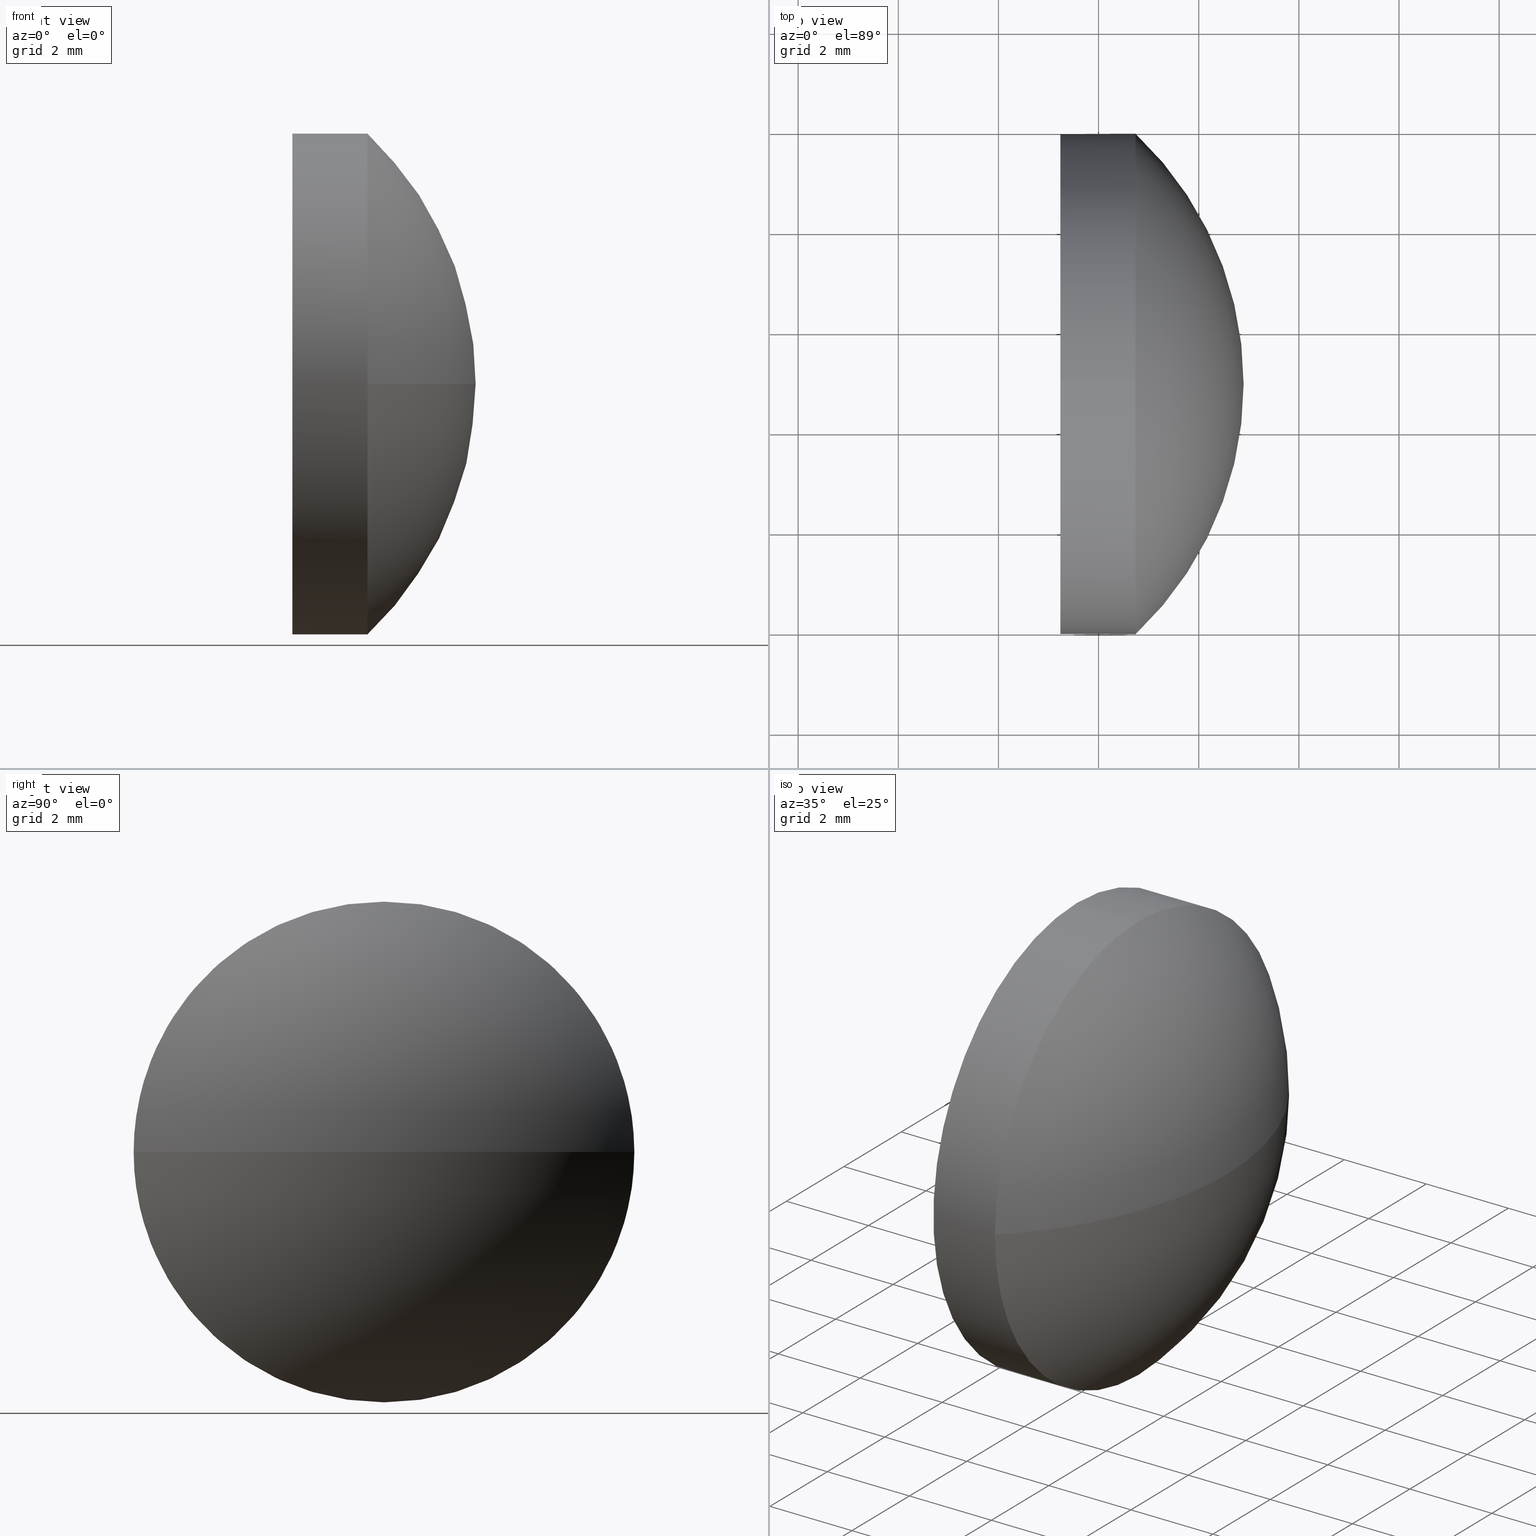
[diagram: canonical four-view strip — front | top / right | iso, engineering-drawing reading convention]
A machine part, canonical four-view strip (front | top / right | iso — engineering-drawing reading convention). The complete STEP part file that produces these views, byte-faithful:
ISO-10303-21;
HEADER;
FILE_DESCRIPTION (( 'STEP AP214' ),
    '1' );
FILE_NAME ('100357.STEP',
    '2019-06-03T06:52:42',
    ( '' ),
    ( '' ),
    'SwSTEP 2.0',
    'SolidWorks 2016',
    '' );
FILE_SCHEMA (( 'AUTOMOTIVE_DESIGN' ));
ENDSEC;

DATA;
#1 = SURFACE_STYLE_FILL_AREA ( #82 ) ;
#2 = ADVANCED_FACE ( 'NONE', ( #139 ), #18, .F. ) ;
#3 = FACE_OUTER_BOUND ( 'NONE', #119, .T. ) ;
#4 = AXIS2_PLACEMENT_3D ( 'NONE', #106, #11, #63 ) ;
#5 = ORIENTED_EDGE ( 'NONE', *, *, #120, .T. ) ;
#6 = CIRCLE ( 'NONE', #4, 5.000000000000004400 ) ;
#7 = PRODUCT_RELATED_PRODUCT_CATEGORY ( 'part', '', ( #161 ) ) ;
#8 = AXIS2_PLACEMENT_3D ( 'NONE', #182, #110, #14 ) ;
#9 = CARTESIAN_POINT ( 'NONE',  ( 444.0298561059135000, 96.92527297599600900, 0.0000000000000000000 ) ) ;
#10 = CARTESIAN_POINT ( 'NONE',  ( 446.0946634505061200, 96.92527297599599500, 5.000000000000004400 ) ) ;
#11 = DIRECTION ( 'NONE',  ( -1.000000000000000000, -0.0000000000000000000, -0.0000000000000000000 ) ) ;
#12 = ORIENTED_EDGE ( 'NONE', *, *, #101, .T. ) ;
#13 = SURFACE_STYLE_USAGE ( .BOTH. , #108 ) ;
#14 = DIRECTION ( 'NONE',  ( 1.000000000000000000, 0.0000000000000000000, 0.0000000000000000000 ) ) ;
#15 = ORIENTED_EDGE ( 'NONE', *, *, #166, .F. ) ;
#16 = ADVANCED_FACE ( 'NONE', ( #66 ), #155, .T. ) ;
#17 = ADVANCED_FACE ( 'NONE', ( #180 ), #186, .T. ) ;
#18 = PLANE ( 'NONE',  #137 ) ;
#19 = CARTESIAN_POINT ( 'NONE',  ( 447.2368931429505200, 96.92527297599599500, -5.000000000000004400 ) ) ;
#20 = APPLICATION_PROTOCOL_DEFINITION ( 'draft international standard', 'automotive_design', 1998, #65 ) ;
#21 = ORIENTED_EDGE ( 'NONE', *, *, #101, .F. ) ;
#22 = UNCERTAINTY_MEASURE_WITH_UNIT (LENGTH_MEASURE( 1.000000000000000100E-005 ), #168, 'distance_accuracy_value', 'NONE');
#23 = PRESENTATION_STYLE_ASSIGNMENT (( #13 ) ) ;
#24 = AXIS2_PLACEMENT_3D ( 'NONE', #157, #95, #112 ) ;
#25 = DIRECTION ( 'NONE',  ( 0.0000000000000000000, 0.0000000000000000000, 1.000000000000000000 ) ) ;
#26 = ORIENTED_EDGE ( 'NONE', *, *, #147, .T. ) ;
#27 = DIRECTION ( 'NONE',  ( 0.0000000000000000000, 0.0000000000000000000, 1.000000000000000000 ) ) ;
#28 = DIRECTION ( 'NONE',  ( -1.000000000000000000, -0.0000000000000000000, -0.0000000000000000000 ) ) ;
#29 = VERTEX_POINT ( 'NONE', #131 ) ;
#30 = FACE_OUTER_BOUND ( 'NONE', #51, .T. ) ;
#31 = DIRECTION ( 'NONE',  ( -1.000000000000000000, -0.0000000000000000000, -0.0000000000000000000 ) ) ;
#32 = PRODUCT_DEFINITION_SHAPE ( 'NONE', 'NONE',  #68 ) ;
#33 = AXIS2_PLACEMENT_3D ( 'NONE', #151, #47, #59 ) ;
#34 = COLOUR_RGB ( '',1.000000000000000000, 1.000000000000000000, 1.000000000000000000 ) ;
#35 =( NAMED_UNIT ( * ) SI_UNIT ( $, .STERADIAN. ) SOLID_ANGLE_UNIT ( ) );
#36 = MANIFOLD_SOLID_BREP ( '��ת1', #50 ) ;
#37 = ORIENTED_EDGE ( 'NONE', *, *, #128, .T. ) ;
#38 = APPLICATION_PROTOCOL_DEFINITION ( 'draft international standard', 'automotive_design', 1998, #136 ) ;
#39 = ORIENTED_EDGE ( 'NONE', *, *, #132, .F. ) ;
#40 = LINE ( 'NONE', #10, #169 ) ;
#41 = ORIENTED_EDGE ( 'NONE', *, *, #158, .T. ) ;
#42 = COLOUR_RGB ( '',1.000000000000000000, 1.000000000000000000, 1.000000000000000000 ) ;
#43 = DIRECTION ( 'NONE',  ( 1.000000000000000000, 0.0000000000000000000, 0.0000000000000000000 ) ) ;
#44 = VERTEX_POINT ( 'NONE', #90 ) ;
#45 = DIRECTION ( 'NONE',  ( 0.0000000000000000000, 0.0000000000000000000, -1.000000000000000000 ) ) ;
#46 =( NAMED_UNIT ( * ) PLANE_ANGLE_UNIT ( ) SI_UNIT ( $, .RADIAN. ) );
#47 = DIRECTION ( 'NONE',  ( -1.000000000000000000, -0.0000000000000000000, -0.0000000000000000000 ) ) ;
#48 = DIRECTION ( 'NONE',  ( 0.0000000000000000000, 0.0000000000000000000, 1.000000000000000000 ) ) ;
#49 =( LENGTH_UNIT ( ) NAMED_UNIT ( * ) SI_UNIT ( .MILLI., .METRE. ) );
#50 = CLOSED_SHELL ( 'NONE', ( #86, #17, #142, #16, #2 ) ) ;
#51 = EDGE_LOOP ( 'NONE', ( #92, #77, #148, #171 ) ) ;
#52 =( GEOMETRIC_REPRESENTATION_CONTEXT ( 3 ) GLOBAL_UNCERTAINTY_ASSIGNED_CONTEXT ( ( #88 ) ) GLOBAL_UNIT_ASSIGNED_CONTEXT ( ( #49, #173, #35 ) ) REPRESENTATION_CONTEXT ( 'NONE', 'WORKASPACE' ) );
#53 = STYLED_ITEM ( 'NONE', ( #23 ), #146 ) ;
#54 = ORIENTED_EDGE ( 'NONE', *, *, #166, .T. ) ;
#55 = CARTESIAN_POINT ( 'NONE',  ( 447.2368931429505200, 96.92527297599599500, 0.0000000000000000000 ) ) ;
#56 = VERTEX_POINT ( 'NONE', #89 ) ;
#57 = DIRECTION ( 'NONE',  ( 0.0000000000000000000, 0.0000000000000000000, -1.000000000000000000 ) ) ;
#58 = CARTESIAN_POINT ( 'NONE',  ( 447.2368931429505200, 96.92527297599599500, 0.0000000000000000000 ) ) ;
#59 = DIRECTION ( 'NONE',  ( 0.0000000000000000000, 0.0000000000000000000, 1.000000000000000000 ) ) ;
#60 = CARTESIAN_POINT ( 'NONE',  ( 448.7368931429505200, 91.92527297599600900, 0.0000000000000000000 ) ) ;
#61 = EDGE_CURVE ( 'NONE', #126, #177, #162, .T. ) ;
#62 = CARTESIAN_POINT ( 'NONE',  ( 444.0298561059135000, 96.92527297599600900, 0.0000000000000000000 ) ) ;
#63 = DIRECTION ( 'NONE',  ( 0.0000000000000000000, 0.0000000000000000000, 1.000000000000000000 ) ) ;
#64 = AXIS2_PLACEMENT_3D ( 'NONE', #9, #45, #165 ) ;
#65 = APPLICATION_CONTEXT ( 'automotive_design' ) ;
#66 = FACE_OUTER_BOUND ( 'NONE', #183, .T. ) ;
#67 = FILL_AREA_STYLE_COLOUR ( '', #42 ) ;
#68 = PRODUCT_DEFINITION ( 'δ֪', '', #94, #100 ) ;
#69 = EDGE_CURVE ( 'NONE', #56, #44, #40, .T. ) ;
#70 = CIRCLE ( 'NONE', #33, 5.000000000000004400 ) ;
#71 = AXIS2_PLACEMENT_3D ( 'NONE', #93, #134, #121 ) ;
#72 = ORIENTED_EDGE ( 'NONE', *, *, #61, .T. ) ;
#73 = EDGE_CURVE ( 'NONE', #126, #97, #127, .T. ) ;
#74 = AXIS2_PLACEMENT_3D ( 'NONE', #58, #28, #27 ) ;
#75 = DIRECTION ( 'NONE',  ( -1.000000000000000000, -0.0000000000000000000, -0.0000000000000000000 ) ) ;
#76 = DIRECTION ( 'NONE',  ( -1.000000000000000000, -0.0000000000000000000, -0.0000000000000000000 ) ) ;
#77 = ORIENTED_EDGE ( 'NONE', *, *, #73, .T. ) ;
#78 =( NAMED_UNIT ( * ) SI_UNIT ( $, .STERADIAN. ) SOLID_ANGLE_UNIT ( ) );
#79 = DIRECTION ( 'NONE',  ( 0.0000000000000000000, -1.000000000000000000, 0.0000000000000000000 ) ) ;
#80 = ORIENTED_EDGE ( 'NONE', *, *, #73, .F. ) ;
#81 = DIRECTION ( 'NONE',  ( -1.000000000000000000, -0.0000000000000000000, -0.0000000000000000000 ) ) ;
#82 = FILL_AREA_STYLE ('',( #67 ) ) ;
#83 = VERTEX_POINT ( 'NONE', #19 ) ;
#84 = PRESENTATION_LAYER_ASSIGNMENT (  '', '', ( #53 ) ) ;
#85 = ORIENTED_EDGE ( 'NONE', *, *, #132, .T. ) ;
#86 = ADVANCED_FACE ( 'NONE', ( #3 ), #152, .T. ) ;
#87 =( GEOMETRIC_REPRESENTATION_CONTEXT ( 3 ) GLOBAL_UNCERTAINTY_ASSIGNED_CONTEXT ( ( #185 ) ) GLOBAL_UNIT_ASSIGNED_CONTEXT ( ( #113, #140, #125 ) ) REPRESENTATION_CONTEXT ( 'NONE', 'WORKASPACE' ) );
#88 = UNCERTAINTY_MEASURE_WITH_UNIT (LENGTH_MEASURE( 1.000000000000000100E-005 ), #49, 'distance_accuracy_value', 'NONE');
#89 = CARTESIAN_POINT ( 'NONE',  ( 448.7368931429505200, 96.92527297599599500, 5.000000000000004400 ) ) ;
#90 = CARTESIAN_POINT ( 'NONE',  ( 447.2368931429505200, 96.92527297599599500, 5.000000000000004400 ) ) ;
#91 = AXIS2_PLACEMENT_3D ( 'NONE', #62, #153, #79 ) ;
#92 = ORIENTED_EDGE ( 'NONE', *, *, #61, .F. ) ;
#93 = CARTESIAN_POINT ( 'NONE',  ( 444.0298561059135000, 96.92527297599600900, 0.0000000000000000000 ) ) ;
#94 = PRODUCT_DEFINITION_FORMATION_WITH_SPECIFIED_SOURCE ( '�κ�', '', #161, .NOT_KNOWN. ) ;
#95 = DIRECTION ( 'NONE',  ( -1.000000000000000000, -0.0000000000000000000, -0.0000000000000000000 ) ) ;
#96 = CARTESIAN_POINT ( 'NONE',  ( 448.7368931429505200, 101.9252729759960100, 6.123233995736752500E-016 ) ) ;
#97 = VERTEX_POINT ( 'NONE', #60 ) ;
#98 = CARTESIAN_POINT ( 'NONE',  ( 447.2368931429505200, 96.92527297599599500, 0.0000000000000000000 ) ) ;
#99 = AXIS2_PLACEMENT_3D ( 'NONE', #98, #170, #181 ) ;
#100 = PRODUCT_DEFINITION_CONTEXT ( 'detailed design', #65, 'design' ) ;
#101 = EDGE_CURVE ( 'NONE', #56, #177, #6, .T. ) ;
#102 = CARTESIAN_POINT ( 'NONE',  ( 446.0946634505061200, 96.92527297599599500, -5.000000000000004400 ) ) ;
#103 = FILL_AREA_STYLE_COLOUR ( '', #34 ) ;
#104 = ORIENTED_EDGE ( 'NONE', *, *, #69, .F. ) ;
#105 = CIRCLE ( 'NONE', #99, 5.000000000000004400 ) ;
#106 = CARTESIAN_POINT ( 'NONE',  ( 448.7368931429505200, 96.92527297599599500, 0.0000000000000000000 ) ) ;
#107 = DIRECTION ( 'NONE',  ( 0.0000000000000000000, 0.0000000000000000000, 1.000000000000000000 ) ) ;
#108 = SURFACE_SIDE_STYLE ('',( #1 ) ) ;
#109 = VECTOR ( 'NONE', #31, 1000.000000000000000 ) ;
#110 = DIRECTION ( 'NONE',  ( 0.0000000000000000000, 0.0000000000000000000, 1.000000000000000000 ) ) ;
#111 = PRODUCT_CONTEXT ( 'NONE', #136, 'mechanical' ) ;
#112 = DIRECTION ( 'NONE',  ( 0.0000000000000000000, 0.0000000000000000000, 1.000000000000000000 ) ) ;
#113 =( LENGTH_UNIT ( ) NAMED_UNIT ( * ) SI_UNIT ( .MILLI., .METRE. ) );
#114 = ORIENTED_EDGE ( 'NONE', *, *, #147, .F. ) ;
#115 = CIRCLE ( 'NONE', #74, 5.000000000000004400 ) ;
#116 = STYLED_ITEM ( 'NONE', ( #144 ), #36 ) ;
#117 = EDGE_LOOP ( 'NONE', ( #5, #54 ) ) ;
#118 = AXIS2_PLACEMENT_3D ( 'NONE', #141, #48, #138 ) ;
#119 = EDGE_LOOP ( 'NONE', ( #41, #85, #167, #104, #12 ) ) ;
#120 = EDGE_CURVE ( 'NONE', #44, #83, #115, .T. ) ;
#121 = DIRECTION ( 'NONE',  ( 0.0000000000000000000, -1.000000000000000000, -1.224646799147353900E-016 ) ) ;
#122 = DIRECTION ( 'NONE',  ( -1.000000000000000000, -0.0000000000000000000, -0.0000000000000000000 ) ) ;
#123 = PRESENTATION_LAYER_ASSIGNMENT (  '', '', ( #116 ) ) ;
#124 = DIRECTION ( 'NONE',  ( 0.0000000000000000000, 0.0000000000000000000, 1.000000000000000000 ) ) ;
#125 =( NAMED_UNIT ( * ) SI_UNIT ( $, .STERADIAN. ) SOLID_ANGLE_UNIT ( ) );
#126 = VERTEX_POINT ( 'NONE', #154 ) ;
#127 = CIRCLE ( 'NONE', #64, 6.867037037037004400 ) ;
#128 = EDGE_CURVE ( 'NONE', #29, #97, #70, .T. ) ;
#129 = ORIENTED_EDGE ( 'NONE', *, *, #69, .T. ) ;
#130 = MECHANICAL_DESIGN_GEOMETRIC_PRESENTATION_REPRESENTATION (  '', ( #116 ), #150 ) ;
#131 = CARTESIAN_POINT ( 'NONE',  ( 448.7368931429505200, 96.92527297599599500, -5.000000000000004400 ) ) ;
#132 = EDGE_CURVE ( 'NONE', #29, #83, #156, .T. ) ;
#133 = CARTESIAN_POINT ( 'NONE',  ( 446.0946634505061200, 96.92527297599599500, 0.0000000000000000000 ) ) ;
#134 = DIRECTION ( 'NONE',  ( 0.0000000000000000000, -1.224646799147353200E-016, 1.000000000000000000 ) ) ;
#135 = SURFACE_STYLE_USAGE ( .BOTH. , #179 ) ;
#136 = APPLICATION_CONTEXT ( 'automotive_design' ) ;
#137 = AXIS2_PLACEMENT_3D ( 'NONE', #55, #43, #57 ) ;
#138 = DIRECTION ( 'NONE',  ( 0.0000000000000000000, -1.000000000000000000, 0.0000000000000000000 ) ) ;
#139 = FACE_OUTER_BOUND ( 'NONE', #117, .T. ) ;
#140 =( NAMED_UNIT ( * ) PLANE_ANGLE_UNIT ( ) SI_UNIT ( $, .RADIAN. ) );
#141 = CARTESIAN_POINT ( 'NONE',  ( 444.0298561059135000, 96.92527297599600900, 0.0000000000000000000 ) ) ;
#142 = ADVANCED_FACE ( 'NONE', ( #30 ), #175, .T. ) ;
#143 = AXIS2_PLACEMENT_3D ( 'NONE', #133, #122, #107 ) ;
#144 = PRESENTATION_STYLE_ASSIGNMENT (( #135 ) ) ;
#145 = SHAPE_DEFINITION_REPRESENTATION ( #32, #146 ) ;
#146 = ADVANCED_BREP_SHAPE_REPRESENTATION ( '100357', ( #36, #8 ), #87 ) ;
#147 = EDGE_CURVE ( 'NONE', #97, #56, #184, .T. ) ;
#148 = ORIENTED_EDGE ( 'NONE', *, *, #128, .F. ) ;
#149 = SURFACE_STYLE_FILL_AREA ( #178 ) ;
#150 =( GEOMETRIC_REPRESENTATION_CONTEXT ( 3 ) GLOBAL_UNCERTAINTY_ASSIGNED_CONTEXT ( ( #22 ) ) GLOBAL_UNIT_ASSIGNED_CONTEXT ( ( #168, #46, #78 ) ) REPRESENTATION_CONTEXT ( 'NONE', 'WORKASPACE' ) );
#151 = CARTESIAN_POINT ( 'NONE',  ( 448.7368931429505200, 96.92527297599599500, 0.0000000000000000000 ) ) ;
#152 = CYLINDRICAL_SURFACE ( 'NONE', #143, 5.000000000000004400 ) ;
#153 = DIRECTION ( 'NONE',  ( 0.0000000000000000000, 0.0000000000000000000, 1.000000000000000000 ) ) ;
#154 = CARTESIAN_POINT ( 'NONE',  ( 450.8968931429504900, 96.92527297599600900, 0.0000000000000000000 ) ) ;
#155 = CYLINDRICAL_SURFACE ( 'NONE', #160, 5.000000000000004400 ) ;
#156 = LINE ( 'NONE', #102, #109 ) ;
#157 = CARTESIAN_POINT ( 'NONE',  ( 448.7368931429505200, 96.92527297599599500, 0.0000000000000000000 ) ) ;
#158 = EDGE_CURVE ( 'NONE', #177, #29, #159, .T. ) ;
#159 = CIRCLE ( 'NONE', #174, 5.000000000000004400 ) ;
#160 = AXIS2_PLACEMENT_3D ( 'NONE', #163, #75, #25 ) ;
#161 = PRODUCT ( '100357', '100357', '', ( #111 ) ) ;
#162 = CIRCLE ( 'NONE', #71, 6.867037037037004400 ) ;
#163 = CARTESIAN_POINT ( 'NONE',  ( 446.0946634505061200, 96.92527297599599500, 0.0000000000000000000 ) ) ;
#164 = MECHANICAL_DESIGN_GEOMETRIC_PRESENTATION_REPRESENTATION (  '', ( #53 ), #52 ) ;
#165 = DIRECTION ( 'NONE',  ( -1.000000000000000000, 0.0000000000000000000, 0.0000000000000000000 ) ) ;
#166 = EDGE_CURVE ( 'NONE', #83, #44, #105, .T. ) ;
#167 = ORIENTED_EDGE ( 'NONE', *, *, #120, .F. ) ;
#168 =( LENGTH_UNIT ( ) NAMED_UNIT ( * ) SI_UNIT ( .MILLI., .METRE. ) );
#169 = VECTOR ( 'NONE', #76, 1000.000000000000000 ) ;
#170 = DIRECTION ( 'NONE',  ( -1.000000000000000000, -0.0000000000000000000, -0.0000000000000000000 ) ) ;
#171 = ORIENTED_EDGE ( 'NONE', *, *, #158, .F. ) ;
#172 = CARTESIAN_POINT ( 'NONE',  ( 448.7368931429505200, 96.92527297599599500, 0.0000000000000000000 ) ) ;
#173 =( NAMED_UNIT ( * ) PLANE_ANGLE_UNIT ( ) SI_UNIT ( $, .RADIAN. ) );
#174 = AXIS2_PLACEMENT_3D ( 'NONE', #172, #81, #124 ) ;
#175 = SPHERICAL_SURFACE ( 'NONE', #118, 6.867037037037008000 ) ;
#176 = EDGE_LOOP ( 'NONE', ( #80, #72, #21, #114 ) ) ;
#177 = VERTEX_POINT ( 'NONE', #96 ) ;
#178 = FILL_AREA_STYLE ('',( #103 ) ) ;
#179 = SURFACE_SIDE_STYLE ('',( #149 ) ) ;
#180 = FACE_OUTER_BOUND ( 'NONE', #176, .T. ) ;
#181 = DIRECTION ( 'NONE',  ( 0.0000000000000000000, 0.0000000000000000000, 1.000000000000000000 ) ) ;
#182 = CARTESIAN_POINT ( 'NONE',  ( 0.0000000000000000000, 0.0000000000000000000, 0.0000000000000000000 ) ) ;
#183 = EDGE_LOOP ( 'NONE', ( #39, #37, #26, #129, #15 ) ) ;
#184 = CIRCLE ( 'NONE', #24, 5.000000000000004400 ) ;
#185 = UNCERTAINTY_MEASURE_WITH_UNIT (LENGTH_MEASURE( 1.000000000000000100E-005 ), #113, 'distance_accuracy_value', 'NONE');
#186 = SPHERICAL_SURFACE ( 'NONE', #91, 6.867037037037008000 ) ;
ENDSEC;
END-ISO-10303-21;
